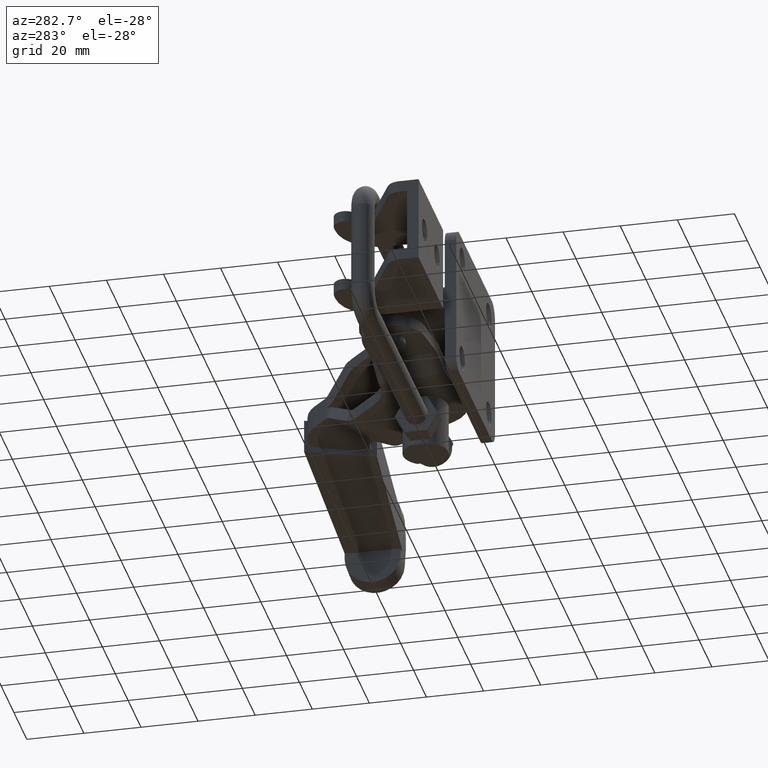
[diagram: clean part render]
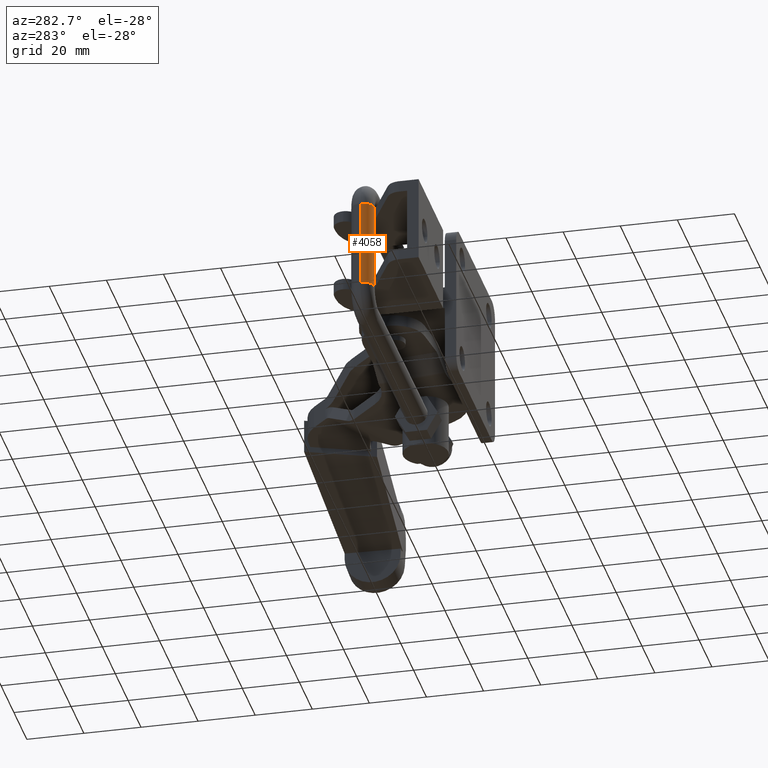
[diagram: same view with one face highlighted and labeled with its STEP entity id]
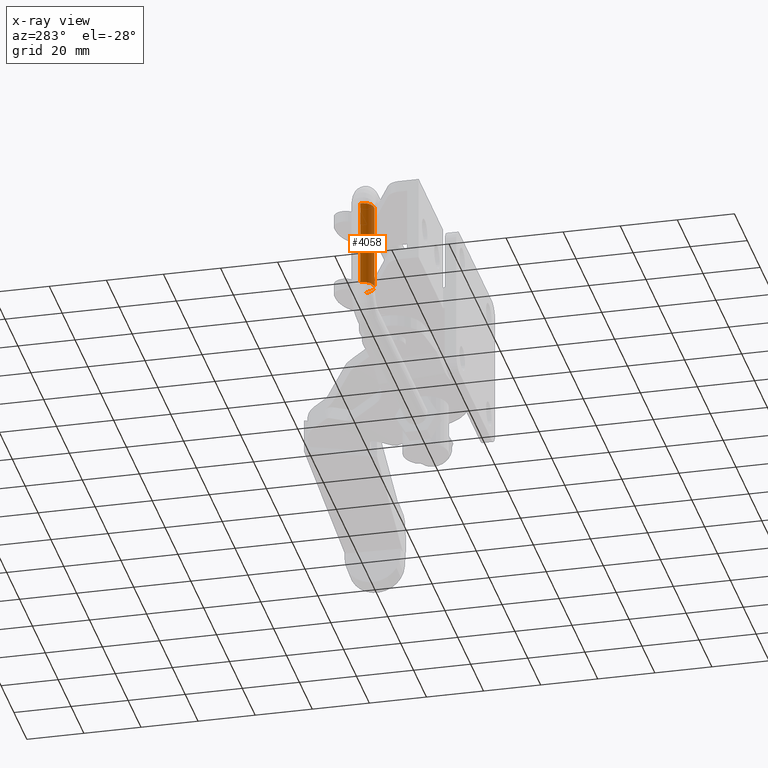
[diagram: x-ray of the same camera — body ghosted, the highlighted face saturated]
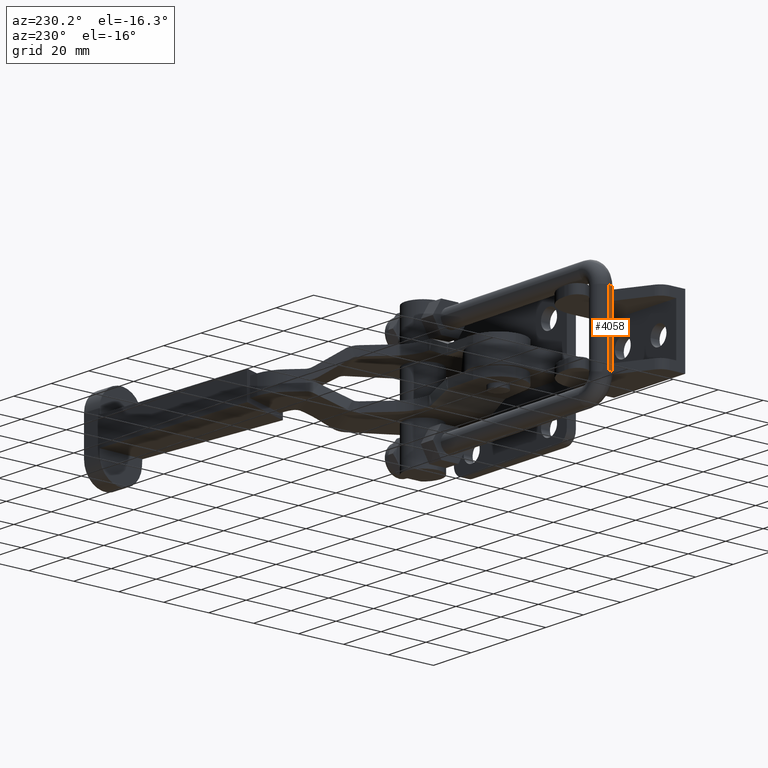
[diagram: same view with one face highlighted and labeled with its STEP entity id]
A machine part, auxiliary view. The second image highlights one B-rep face of the part: STEP entity #4058.
The next image is the same camera in x-ray: the body ghosted, the highlighted face saturated — about 0% of this face is hidden behind the body in this view.
A second angle (auxiliary view) of the same face is appended — the face is thin or edge-on in the first view.
In plain terms, the highlighted cylindrical surface (edge-blend (fillet) strip) has radius 4 mm, axis along (-0, 0, -1).
Its self-contained STEP definition (entity closure, byte-faithful):
#296 = DIRECTION ( 'NONE',  ( -0.0000000000000000000, -0.0000000000000000000, -1.000000000000000000 ) ) ;
#325 = CIRCLE ( 'NONE', #611, 4.000000000000003600 ) ;
#377 = ORIENTED_EDGE ( 'NONE', *, *, #9687, .F. ) ;
#419 = CARTESIAN_POINT ( 'NONE',  ( -37.34735007127072500, 23.33114463887526600, -15.10000000000000000 ) ) ;
#591 = DIRECTION ( 'NONE',  ( 0.9999888897931834600, -0.004713840281175307400, 0.0000000000000000000 ) ) ;
#611 = AXIS2_PLACEMENT_3D ( 'NONE', #5389, #296, #6242 ) ;
#707 = ORIENTED_EDGE ( 'NONE', *, *, #1490, .T. ) ;
#978 = VERTEX_POINT ( 'NONE', #5157 ) ;
#1062 = AXIS2_PLACEMENT_3D ( 'NONE', #4453, #4399, #8156 ) ;
#1065 = CIRCLE ( 'NONE', #7943, 4.000000000000003600 ) ;
#1125 = LINE ( 'NONE', #4143, #3106 ) ;
#1142 = EDGE_CURVE ( 'NONE', #7064, #4927, #8040, .T. ) ;
#1223 = VERTEX_POINT ( 'NONE', #10134 ) ;
#1280 = CARTESIAN_POINT ( 'NONE',  ( -45.34726118961603400, 23.36885536112467000, -15.24999999999999500 ) ) ;
#1387 = AXIS2_PLACEMENT_3D ( 'NONE', #3129, #5680, #591 ) ;
#1490 = EDGE_CURVE ( 'NONE', #10743, #1223, #2918, .T. ) ;
#1493 = CARTESIAN_POINT ( 'NONE',  ( -37.34735007127056900, 23.33114463887526600, 15.25000000000001200 ) ) ;
#1573 = EDGE_CURVE ( 'NONE', #7838, #8133, #1065, .T. ) ;
#1682 = CARTESIAN_POINT ( 'NONE',  ( -37.34735007127072500, 23.33114463887526600, -11.10000000000000100 ) ) ;
#1910 = VECTOR ( 'NONE', #10227, 1000.000000000000000 ) ;
#2140 = CARTESIAN_POINT ( 'NONE',  ( -37.34735007127056900, 23.33114463887526600, 15.25000000000001200 ) ) ;
#2284 = EDGE_CURVE ( 'NONE', #7064, #10743, #7619, .T. ) ;
#2331 = DIRECTION ( 'NONE',  ( -2.831406573256059800E-017, 2.414548036698167000E-018, -1.000000000000000000 ) ) ;
#2442 = CARTESIAN_POINT ( 'NONE',  ( -45.34726118961603400, 23.36885536112467000, 15.25000000000001600 ) ) ;
#2529 = CARTESIAN_POINT ( 'NONE',  ( -37.34735007127056900, 23.33114463887526600, 15.25000000000000900 ) ) ;
#2595 = ORIENTED_EDGE ( 'NONE', *, *, #2284, .T. ) ;
#2866 = CARTESIAN_POINT ( 'NONE',  ( -45.34726118961603400, 23.36885536112467000, 15.25000000000001200 ) ) ;
#2870 = VECTOR ( 'NONE', #9869, 1000.000000000000000 ) ;
#2918 = CIRCLE ( 'NONE', #1062, 4.000000000000001800 ) ;
#2961 = ORIENTED_EDGE ( 'NONE', *, *, #4024, .T. ) ;
#2999 = EDGE_CURVE ( 'NONE', #7756, #1223, #6787, .T. ) ;
#3106 = VECTOR ( 'NONE', #5891, 1000.000000000000000 ) ;
#3129 = CARTESIAN_POINT ( 'NONE',  ( -41.34730563044330200, 23.34999999999996900, 15.25000000000001200 ) ) ;
#3332 = DIRECTION ( 'NONE',  ( -0.0000000000000000000, -0.0000000000000000000, -1.000000000000000000 ) ) ;
#3422 = ORIENTED_EDGE ( 'NONE', *, *, #1573, .F. ) ;
#3464 = VECTOR ( 'NONE', #3332, 1000.000000000000000 ) ;
#3534 = DIRECTION ( 'NONE',  ( 9.492765034231074300E-016, -6.755866105874848700E-018, 1.000000000000000000 ) ) ;
#3643 = CIRCLE ( 'NONE', #5704, 4.000000000000000000 ) ;
#3910 = DIRECTION ( 'NONE',  ( 1.222089682935848900E-032, 9.802522302627077600E-017, 1.000000000000000000 ) ) ;
#3964 = EDGE_CURVE ( 'NONE', #4927, #7838, #7709, .T. ) ;
#4024 = EDGE_CURVE ( 'NONE', #978, #7120, #4872, .T. ) ;
#4025 = CARTESIAN_POINT ( 'NONE',  ( -39.50935201906688800, 19.79726492369219700, 11.09999999999999800 ) ) ;
#4058 = ADVANCED_FACE ( 'NONE', ( #8931 ), #4059, .T. ) ;
#4059 = CYLINDRICAL_SURFACE ( 'NONE', #1387, 4.000000000000001800 ) ;
#4125 = ORIENTED_EDGE ( 'NONE', *, *, #2999, .F. ) ;
#4134 = EDGE_LOOP ( 'NONE', ( #10456, #2595, #707, #4125, #6389, #8483, #2961, #4645, #7283, #377, #3422, #8663 ) ) ;
#4143 = CARTESIAN_POINT ( 'NONE',  ( -39.50935201906700900, 19.79726492369213600, 15.10000000000000000 ) ) ;
#4334 = CARTESIAN_POINT ( 'NONE',  ( -39.50935201906700900, 19.79726492369213600, 15.10000000000000000 ) ) ;
#4399 = DIRECTION ( 'NONE',  ( 9.492765034231074300E-016, -6.755866105874848700E-018, 1.000000000000000000 ) ) ;
#4453 = CARTESIAN_POINT ( 'NONE',  ( -41.34730563044330200, 23.34999999999996900, -15.24999999999999800 ) ) ;
#4630 = VERTEX_POINT ( 'NONE', #4025 ) ;
#4645 = ORIENTED_EDGE ( 'NONE', *, *, #5928, .F. ) ;
#4854 = DIRECTION ( 'NONE',  ( 1.222089682935848900E-032, 9.802522302627077600E-017, -1.000000000000000000 ) ) ;
#4872 = CIRCLE ( 'NONE', #7889, 4.000000000000000000 ) ;
#4927 = VERTEX_POINT ( 'NONE', #2529 ) ;
#4953 = CARTESIAN_POINT ( 'NONE',  ( -41.34730563044346500, 23.34999999999999800, 15.10000000000000000 ) ) ;
#5157 = CARTESIAN_POINT ( 'NONE',  ( -39.50935201906700900, 19.79726492369214000, -11.09999999999999800 ) ) ;
#5389 = CARTESIAN_POINT ( 'NONE',  ( -41.34730563044346500, 23.34999999999999800, -15.10000000000000000 ) ) ;
#5680 = DIRECTION ( 'NONE',  ( -2.831406573256059800E-017, 2.414548036698167000E-018, -1.000000000000000000 ) ) ;
#5704 = AXIS2_PLACEMENT_3D ( 'NONE', #10026, #4854, #10886 ) ;
#5891 = DIRECTION ( 'NONE',  ( -0.0000000000000000000, -0.0000000000000000000, -1.000000000000000000 ) ) ;
#5928 = EDGE_CURVE ( 'NONE', #8933, #7120, #11032, .T. ) ;
#6135 = EDGE_CURVE ( 'NONE', #7756, #8151, #325, .T. ) ;
#6242 = DIRECTION ( 'NONE',  ( 1.000000000000000000, 0.0000000000000000000, 0.0000000000000000000 ) ) ;
#6389 = ORIENTED_EDGE ( 'NONE', *, *, #6135, .T. ) ;
#6562 = DIRECTION ( 'NONE',  ( 1.000000000000000000, 0.0000000000000000000, 0.0000000000000000000 ) ) ;
#6772 = CARTESIAN_POINT ( 'NONE',  ( -37.34735007127056900, 23.33114463887526600, 15.25000000000001200 ) ) ;
#6787 = LINE ( 'NONE', #1493, #8820 ) ;
#6942 = CARTESIAN_POINT ( 'NONE',  ( -39.50935201906700900, 19.79726492369213600, -15.10000000000000000 ) ) ;
#7064 = VERTEX_POINT ( 'NONE', #2442 ) ;
#7120 = VERTEX_POINT ( 'NONE', #1682 ) ;
#7221 = DIRECTION ( 'NONE',  ( -0.0000000000000000000, -0.0000000000000000000, -1.000000000000000000 ) ) ;
#7283 = ORIENTED_EDGE ( 'NONE', *, *, #8364, .T. ) ;
#7619 = LINE ( 'NONE', #2866, #8842 ) ;
#7709 = LINE ( 'NONE', #2140, #2870 ) ;
#7756 = VERTEX_POINT ( 'NONE', #419 ) ;
#7838 = VERTEX_POINT ( 'NONE', #9057 ) ;
#7889 = AXIS2_PLACEMENT_3D ( 'NONE', #9077, #3910, #9943 ) ;
#7943 = AXIS2_PLACEMENT_3D ( 'NONE', #4953, #7221, #6562 ) ;
#8013 = DIRECTION ( 'NONE',  ( -2.831406573256059800E-017, 2.414548036698167000E-018, -1.000000000000000000 ) ) ;
#8014 = EDGE_CURVE ( 'NONE', #978, #8151, #1125, .T. ) ;
#8034 = LINE ( 'NONE', #11075, #3464 ) ;
#8040 = CIRCLE ( 'NONE', #10116, 4.000000000000001800 ) ;
#8133 = VERTEX_POINT ( 'NONE', #4334 ) ;
#8151 = VERTEX_POINT ( 'NONE', #6942 ) ;
#8156 = DIRECTION ( 'NONE',  ( 0.004713840281174440000, 0.9999888897931834600, 0.0000000000000000000 ) ) ;
#8364 = EDGE_CURVE ( 'NONE', #8933, #4630, #3643, .T. ) ;
#8483 = ORIENTED_EDGE ( 'NONE', *, *, #8014, .F. ) ;
#8663 = ORIENTED_EDGE ( 'NONE', *, *, #3964, .F. ) ;
#8692 = DIRECTION ( 'NONE',  ( 0.004713840281174440000, 0.9999888897931834600, 0.0000000000000000000 ) ) ;
#8820 = VECTOR ( 'NONE', #2331, 1000.000000000000000 ) ;
#8842 = VECTOR ( 'NONE', #8013, 1000.000000000000000 ) ;
#8931 = FACE_OUTER_BOUND ( 'NONE', #4134, .T. ) ;
#8933 = VERTEX_POINT ( 'NONE', #10804 ) ;
#9057 = CARTESIAN_POINT ( 'NONE',  ( -37.34735007127072500, 23.33114463887526600, 15.10000000000000000 ) ) ;
#9077 = CARTESIAN_POINT ( 'NONE',  ( -41.34730563044346500, 23.34999999999999800, -11.10000000000000100 ) ) ;
#9561 = CARTESIAN_POINT ( 'NONE',  ( -41.34730563044330200, 23.34999999999996900, 15.25000000000001200 ) ) ;
#9687 = EDGE_CURVE ( 'NONE', #8133, #4630, #8034, .T. ) ;
#9869 = DIRECTION ( 'NONE',  ( -2.831406573256059800E-017, 2.414548036698167000E-018, -1.000000000000000000 ) ) ;
#9943 = DIRECTION ( 'NONE',  ( -3.469446951953614200E-015, 1.000000000000000000, 0.0000000000000000000 ) ) ;
#10026 = CARTESIAN_POINT ( 'NONE',  ( -41.34730563044346500, 23.34999999999999800, 11.09999999999999800 ) ) ;
#10116 = AXIS2_PLACEMENT_3D ( 'NONE', #9561, #3534, #8692 ) ;
#10134 = CARTESIAN_POINT ( 'NONE',  ( -37.34735007127056900, 23.33114463887526600, -15.25000000000000200 ) ) ;
#10227 = DIRECTION ( 'NONE',  ( -2.831406573256059800E-017, 2.414548036698167000E-018, -1.000000000000000000 ) ) ;
#10456 = ORIENTED_EDGE ( 'NONE', *, *, #1142, .F. ) ;
#10743 = VERTEX_POINT ( 'NONE', #1280 ) ;
#10804 = CARTESIAN_POINT ( 'NONE',  ( -37.34735007127072500, 23.33114463887526600, 11.09999999999999800 ) ) ;
#10886 = DIRECTION ( 'NONE',  ( -3.469446951953614200E-015, -1.000000000000000000, 0.0000000000000000000 ) ) ;
#11032 = LINE ( 'NONE', #6772, #1910 ) ;
#11075 = CARTESIAN_POINT ( 'NONE',  ( -39.50935201906700900, 19.79726492369213600, 15.10000000000000000 ) ) ;